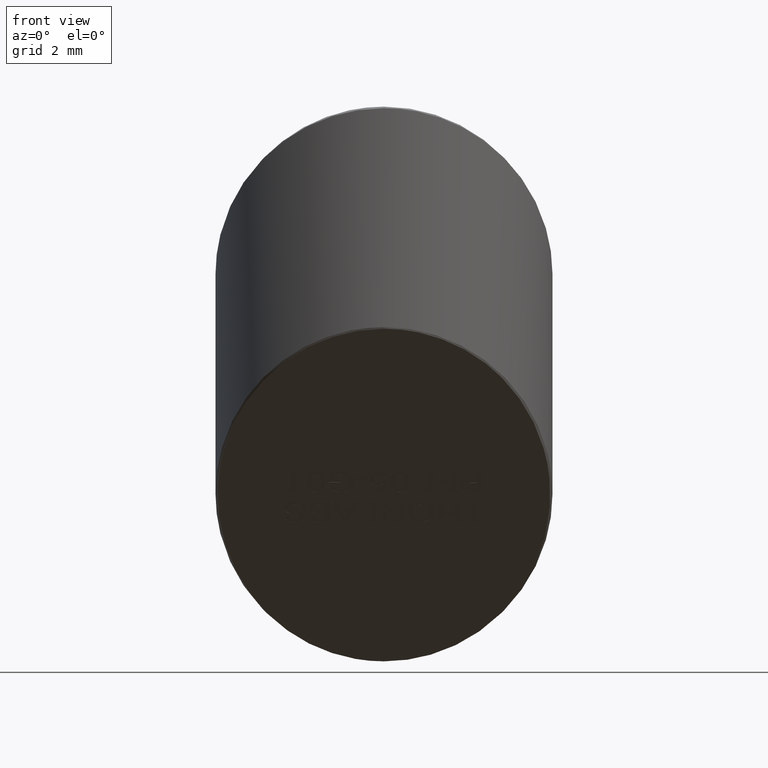
[diagram: clean part render]
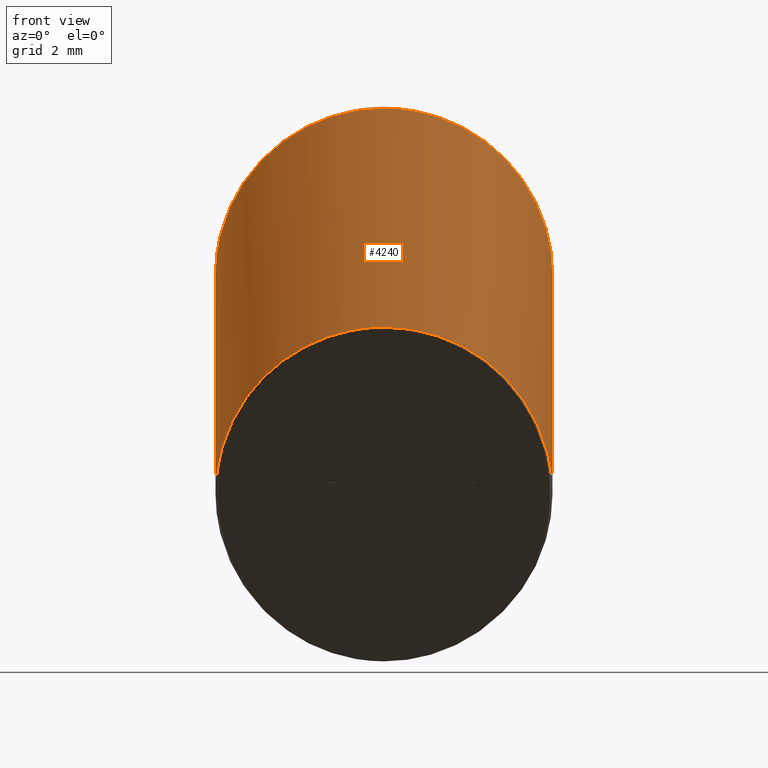
[diagram: same view with one face highlighted and labeled with its STEP entity id]
A machine part, front view. The second image highlights one B-rep face of the part: STEP entity #4240.
In plain terms, the highlighted cylindrical surface (partial cylindrical patch) has radius 6.35 mm, axis along (-0, -0, -1).
Its self-contained STEP definition (entity closure, byte-faithful):
#19 = CARTESIAN_POINT ( 'NONE',  ( 0.2223416782683677900, -0.1143668204986453400, -0.04954749645679985800 ) ) ;
#32 = CARTESIAN_POINT ( 'NONE',  ( -0.2423881008804008900, -0.06122296373910745400, 0.2228365368072238200 ) ) ;
#41 = CARTESIAN_POINT ( 'NONE',  ( -0.2499331683995130400, -0.005780963857176237200, -0.1567105746663771400 ) ) ;
#58 = CARTESIAN_POINT ( 'NONE',  ( 0.2370450236574142000, -0.07947957650088145800, -0.08397766531316383500 ) ) ;
#73 = CARTESIAN_POINT ( 'NONE',  ( -0.2475743223223937600, -0.03479369849507288300, 0.1967535806247425500 ) ) ;
#82 = CARTESIAN_POINT ( 'NONE',  ( -0.2489501389025588800, -0.02289565930073488400, -0.1398201479897643600 ) ) ;
#102 = CARTESIAN_POINT ( 'NONE',  ( 0.2447768522277455100, -0.05083865225638128900, -0.1122432812165127900 ) ) ;
#120 = CARTESIAN_POINT ( 'NONE',  ( -0.2496705844118724500, -0.01283269261419966700, 0.1750803297480777700 ) ) ;
#147 = CARTESIAN_POINT ( 'NONE',  ( 0.2486876141990224100, -0.02558405203329636200, -0.1371669669333660500 ) ) ;
#162 = CARTESIAN_POINT ( 'NONE',  ( 0.2497210451207830800, -0.01180908989499492400, 0.1740701405427806700 ) ) ;
#187 = CARTESIAN_POINT ( 'NONE',  ( 0.2498706253331793600, -0.008073667333966626600, -0.1544479186296308900 ) ) ;
#200 = CARTESIAN_POINT ( 'NONE',  ( 0.2475706317967764100, -0.03477094359615456900, 0.1967311071907965900 ) ) ;
#256 = FACE_OUTER_BOUND ( 'NONE', #12329, .T. ) ;
#350 = CARTESIAN_POINT ( 'NONE',  ( 0.2429825305382694900, -0.05881953228599963400, 0.2204645896993455700 ) ) ;
#393 = CARTESIAN_POINT ( 'NONE',  ( 0.2346823770394754500, -0.08618900332873176400, 0.2474754469720219200 ) ) ;
#443 = CARTESIAN_POINT ( 'NONE',  ( 0.2164516727076655200, -0.1251615217096913000, 0.2859371593515738800 ) ) ;
#464 = CARTESIAN_POINT ( 'NONE',  ( -0.2427464961914780600, -0.05978616990479916600, -0.1034130087881898300 ) ) ;
#494 = CARTESIAN_POINT ( 'NONE',  ( 0.1906109935577851900, -0.1618171440596370100, 0.3221126694723831500 ) ) ;
#512 = CARTESIAN_POINT ( 'NONE',  ( -0.2336009041747087500, -0.08909498340678434500, -0.07448824594513744900 ) ) ;
#539 = CARTESIAN_POINT ( 'NONE',  ( 0.1422443886146468300, -0.2055983147944680500, 0.3653201243496210200 ) ) ;
#541 = B_SPLINE_CURVE_WITH_KNOTS ( 'NONE', 3,
 ( #6288, #12763, #1981, #9567, #3071, #10661, #4160, #11728, #5249, #12812, #6335, #13905, #7442, #942, #8520, #2025, #9616, #3117, #10704, #4213, #11777, #5289, #12862, #6388, #13951, #7484, #999, #8567, #2070, #9666, #3161, #10750, #4257, #11828, #5336, #12903, #6430, #14003, #7532, #1037, #8624, #2117, #9708, #3209, #10801, #4304, #11871, #5389, #12954, #6471, #19, #7583, #1084, #8670, #2173, #9750, #3252, #10846, #4356, #11915, #5433, #13008, #6517, #58, #7630, #1136, #8716, #2216, #9808, #3297, #10890, #4406, #11969, #5475, #13051, #6571, #102, #7670, #1186, #8764, #2259, #9849, #3351, #10932, #4447, #12014, #5526, #13092, #6614, #147, #7713, #1225, #8810, #2302, #9890, #3388, #10980, #4485, #12057, #5572, #13136, #6651, #187, #7762, #1268, #8848, #2352, #9936, #3427, #11016 ),
 .UNSPECIFIED., .F., .F.,
 ( 4, 2, 2, 2, 2, 2, 2, 2, 1, 2, 2, 1, 2, 2, 1, 2, 2, 1, 1, 2, 2, 2, 1, 2, 2, 2, 1, 2, 2, 2, 1, 2, 2, 1, 2, 2, 1, 2, 2, 1, 1, 2, 2, 1, 1, 2, 2, 1, 1, 2, 2, 1, 1, 1, 2, 2, 2, 1, 1, 2, 2, 1, 1, 1, 2, 2, 4 ),
 ( 0.5000000000000000000, 0.5156250000000000000, 0.5312500000000001100, 0.5468750000000001100, 0.5546875000000001100, 0.5625000000000001100, 0.5703125000000002200, 0.5781250000000002200, 0.5859375000000002200, 0.5898437500000002200, 0.5937500000000001100, 0.6015625000000001100, 0.6054687500000000000, 0.6093750000000000000, 0.6171875000000000000, 0.6210937500000000000, 0.6250000000000000000, 0.6328124999999998900, 0.6367187499999998900, 0.6386718749999998900, 0.6406249999999998900, 0.6484374999999998900, 0.6523437499999998900, 0.6542968749999998900, 0.6562499999999998900, 0.6640625000000000000, 0.6679687500000000000, 0.6699218750000000000, 0.6718750000000000000, 0.6796875000000000000, 0.6835937500000000000, 0.6855468750000000000, 0.6875000000000000000, 0.6914062500000000000, 0.6933593750000000000, 0.6953125000000000000, 0.6992187500000000000, 0.7011718750000000000, 0.7031249999999998900, 0.7070312499999998900, 0.7089843749999998900, 0.7099609374999998900, 0.7109374999999998900, 0.7148437499999998900, 0.7167968749999998900, 0.7177734374999998900, 0.7187499999999998900, 0.7226562499999998900, 0.7246093749999998900, 0.7255859374999998900, 0.7265624999999998900, 0.7304687499999998900, 0.7324218749999997800, 0.7333984374999997800, 0.7338867187499997800, 0.7343749999999997800, 0.7382812499999997800, 0.7402343749999997800, 0.7412109374999997800, 0.7416992187499997800, 0.7421874999999997800, 0.7441406249999997800, 0.7451171874999997800, 0.7456054687499997800, 0.7458496093749997800, 0.7460937499999997800, 0.7500000000000000000 ),
 .UNSPECIFIED. ) ;
#554 = CARTESIAN_POINT ( 'NONE',  ( -0.2132936663265296300, -0.1304223722704240000, -0.03370250540536774000 ) ) ;
#579 = CARTESIAN_POINT ( 'NONE',  ( 0.01634743990288260000, -0.2500000000000000600, 0.4091399674393946800 ) ) ;
#601 = CARTESIAN_POINT ( 'NONE',  ( -0.1865628848379676000, -0.1665037659762948500, 0.001906112908788812600 ) ) ;
#657 = CARTESIAN_POINT ( 'NONE',  ( -0.1406096565373472800, -0.2067200746840976700, 0.04159564061083844500 ) ) ;
#704 = CARTESIAN_POINT ( 'NONE',  ( 1.528921213961874800E-017, -0.2500000000000001100, 0.08430848201719966200 ) ) ;
#773 = CARTESIAN_POINT ( 'NONE',  ( 4.590538211830259100E-017, -0.2500000000000001100, 0.4091400578733966900 ) ) ;
#820 = B_SPLINE_CURVE_WITH_KNOTS ( 'NONE', 3,
 ( #4329, #10826, #3233, #5418, #12985, #6491, #41, #7609, #1109, #8696, #2198, #9782, #3277, #10869, #4382, #11944, #5457, #13032, #6547, #82, #7652, #1164, #8743, #2242, #9833, #3328, #10431, #3924, #1508, #9082, #2572, #10172, #3666, #11248, #4774, #12334, #5844, #13414, #6934, #464, #8031, #1546, #9133, #2619, #10214, #3712, #11304, #4821, #12379, #5898, #13465, #6983, #512, #8084, #1590, #9178, #2671, #10265, #3757, #11348, #4873, #12424, #5940, #13517, #7033, #554, #8128, #1642, #9224, #2718, #10318, #3815, #11395, #4918, #12473, #5991, #13561, #7088, #601, #8176, #1691, #9277, #2768, #10367, #3865, #11445, #4963, #12523, #6045, #13605, #7134, #657, #8231, #1740, #9325, #2826, #10415, #3912, #11503, #5016, #12571, #6094, #13668, #7182, #704 ),
 .UNSPECIFIED., .F., .F.,
 ( 4, 2, 1, 1, 2, 2, 1, 1, 2, 2, 2, 1, 1, 2, 2, 1, 1, 2, 2, 1, 1, 2, 2, 1, 1, 2, 2, 1, 2, 2, 1, 2, 2, 1, 2, 2, 2, 1, 2, 2, 2, 1, 2, 2, 2, 1, 2, 2, 1, 2, 2, 1, 2, 2, 1, 2, 2, 2, 2, 2, 2, 2, 4 ),
 ( 0.2500000000000000000, 0.2519531250000002800, 0.2529296875000004400, 0.2534179687500005000, 0.2536621093750005000, 0.2539062500000005000, 0.2558593750000004400, 0.2568359375000004400, 0.2573242187500004400, 0.2578125000000005000, 0.2617187500000005600, 0.2636718750000006100, 0.2646484375000006100, 0.2651367187500006100, 0.2656250000000006100, 0.2695312500000005600, 0.2714843750000005600, 0.2724609375000005600, 0.2734375000000005600, 0.2773437500000005600, 0.2792968750000005600, 0.2802734375000005600, 0.2812500000000005600, 0.2851562500000005000, 0.2871093750000005000, 0.2880859375000005000, 0.2890625000000005000, 0.2929687500000005000, 0.2949218750000004400, 0.2968750000000004400, 0.3007812500000003900, 0.3027343750000003900, 0.3046875000000003300, 0.3085937500000003300, 0.3105468750000002800, 0.3125000000000002800, 0.3203125000000002200, 0.3242187500000002200, 0.3261718750000001700, 0.3281250000000001700, 0.3359375000000001100, 0.3398437500000001100, 0.3417968750000001100, 0.3437500000000000600, 0.3515624999999999400, 0.3554687499999998900, 0.3574218749999998900, 0.3593749999999998300, 0.3671874999999998300, 0.3710937499999998900, 0.3749999999999998900, 0.3828124999999998900, 0.3867187499999998900, 0.3906249999999998900, 0.3984374999999999400, 0.4023437500000000000, 0.4062500000000000000, 0.4140625000000000000, 0.4218750000000000000, 0.4296874999999999400, 0.4374999999999999400, 0.4687500000000000000, 0.5000000000000000000 ),
 .UNSPECIFIED. ) ;
#869 = CARTESIAN_POINT ( 'NONE',  ( -0.08803967110114135900, -0.2340208312245616900, 0.3933701840656725300 ) ) ;
#911 = CARTESIAN_POINT ( 'NONE',  ( -0.1521408736809944100, -0.1983869684394063700, 0.3582032240004466800 ) ) ;
#942 = CARTESIAN_POINT ( 'NONE',  ( 0.1105434153052812500, -0.2242696735345107200, 0.05891521369462984800 ) ) ;
#962 = CARTESIAN_POINT ( 'NONE',  ( -0.1926182380112641300, -0.1593713096163560400, 0.3196988644799950700 ) ) ;
#999 = CARTESIAN_POINT ( 'NONE',  ( 0.1663281574844581700, -0.1867198321264836600, 0.02185731722760086600 ) ) ;
#1014 = CARTESIAN_POINT ( 'NONE',  ( -0.2194855408982676600, -0.1196962263823623700, 0.2805436252875627700 ) ) ;
#1037 = CARTESIAN_POINT ( 'NONE',  ( 0.2037489043681806300, -0.1448926500429885700, -0.01942176661814097600 ) ) ;
#1057 = CARTESIAN_POINT ( 'NONE',  ( -0.2350500362629367200, -0.08516146463507809300, 0.2464613665363705200 ) ) ;
#1084 = CARTESIAN_POINT ( 'NONE',  ( 0.2267822257260649600, -0.1052331002032634400, -0.05856176702099636500 ) ) ;
#1099 = CARTESIAN_POINT ( 'NONE',  ( -0.2436846347492079300, -0.05590309800078854800, 0.2175863429864318400 ) ) ;
#1109 = CARTESIAN_POINT ( 'NONE',  ( -0.2499281884146772900, -0.005993395273826854700, -0.1565009244314747600 ) ) ;
#1136 = CARTESIAN_POINT ( 'NONE',  ( 0.2386221765306954000, -0.07456895317928632900, -0.08882391508324100100 ) ) ;
#1155 = CARTESIAN_POINT ( 'NONE',  ( -0.2484037043020130000, -0.02824113965573029500, 0.1902868470181918700 ) ) ;
#1164 = CARTESIAN_POINT ( 'NONE',  ( -0.2488406073479461100, -0.02405006087784411500, -0.1386808549556924600 ) ) ;
#1167 = VERTEX_POINT ( 'NONE', #6675 ) ;
#1186 = CARTESIAN_POINT ( 'NONE',  ( 0.2451013115065508200, -0.04925022096203112600, -0.1138108892076631800 ) ) ;
#1197 = CARTESIAN_POINT ( 'NONE',  ( 0.2499890269353431100, -0.002555823327574027400, 0.1649380889814212000 ) ) ;
#1201 = CARTESIAN_POINT ( 'NONE',  ( -0.2497434553173376300, -0.01135924250953115900, 0.1736261887288279800 ) ) ;
#1225 = CARTESIAN_POINT ( 'NONE',  ( 0.2487739124405283800, -0.02473038834381027400, -0.1380094400129440200 ) ) ;
#1235 = CARTESIAN_POINT ( 'NONE',  ( 0.2495873755207516900, -0.01453631975585065900, 0.1767616365978711400 ) ) ;
#1268 = CARTESIAN_POINT ( 'NONE',  ( 0.2499102716016337300, -0.006698942352078836000, -0.1558046233397187800 ) ) ;
#1281 = CARTESIAN_POINT ( 'NONE',  ( 0.2473726905157509500, -0.03615298972297328900, 0.1980950588619648500 ) ) ;
#1431 = CARTESIAN_POINT ( 'NONE',  ( 0.2426357254484539600, -0.06023439104908029400, 0.2218609174965818200 ) ) ;
#1486 = CARTESIAN_POINT ( 'NONE',  ( 0.2324843076334832700, -0.09193514284016478200, 0.2531462912076952200 ) ) ;
#1508 = CARTESIAN_POINT ( 'NONE',  ( -0.2473726905152881500, -0.03615298972609339000, -0.1267365169911787700 ) ) ;
#1529 = CARTESIAN_POINT ( 'NONE',  ( 0.2116931192567109700, -0.1330155348220089800, 0.2936883000576007700 ) ) ;
#1546 = CARTESIAN_POINT ( 'NONE',  ( -0.2419961646997902400, -0.06278766068106160500, -0.1004508410906077800 ) ) ;
#1571 = CARTESIAN_POINT ( 'NONE',  ( 0.1824029818000402800, -0.1709773692447706400, 0.3311527482962501300 ) ) ;
#1573 = EDGE_CURVE ( 'NONE', #3554, #2794, #820, .T. ) ;
#1590 = CARTESIAN_POINT ( 'NONE',  ( -0.2317325270964201200, -0.09381396308844766600, -0.06983107077515024500 ) ) ;
#1623 = CARTESIAN_POINT ( 'NONE',  ( 0.1354583616856870600, -0.2101620598616006600, 0.3698241300838298600 ) ) ;
#1642 = CARTESIAN_POINT ( 'NONE',  ( -0.2100629158657672200, -0.1355528494002033500, -0.02863913510619323800 ) ) ;
#1691 = CARTESIAN_POINT ( 'NONE',  ( -0.1796066712195129900, -0.1739124843616965100, 0.009217887729673739100 ) ) ;
#1740 = CARTESIAN_POINT ( 'NONE',  ( -0.1319837973422171300, -0.2123605668992256400, 0.04716216268148520200 ) ) ;
#1819 = EDGE_CURVE ( 'NONE', #7492, #3554, #5039, .T. ) ;
#1907 = CARTESIAN_POINT ( 'NONE',  ( -0.008173719951441293200, -0.2500000000000001100, 0.4091401030903976100 ) ) ;
#1950 = CARTESIAN_POINT ( 'NONE',  ( -0.09942041111909460900, -0.2294167674108607000, 0.3888265464812658600 ) ) ;
#1972 = VECTOR ( 'NONE', #10336, 39.37007874015748100 ) ;
#1981 = CARTESIAN_POINT ( 'NONE',  ( 0.01638314262150695000, -0.2495960443858851700, 0.08390977447512380800 ) ) ;
#1999 = CARTESIAN_POINT ( 'NONE',  ( -0.1570409078414649600, -0.1945307493220266300, 0.3543976077460084300 ) ) ;
#2025 = CARTESIAN_POINT ( 'NONE',  ( 0.1214209869870680200, -0.2185711477254549400, 0.05329145924585363500 ) ) ;
#2044 = CARTESIAN_POINT ( 'NONE',  ( -0.1982822176333595400, -0.1523184010716661100, 0.3127382378920163800 ) ) ;
#2070 = CARTESIAN_POINT ( 'NONE',  ( 0.1738280830776176800, -0.1796887408164887800, 0.01491846240501350700 ) ) ;
#2086 = CARTESIAN_POINT ( 'NONE',  ( -0.2223416782721108200, -0.1143668204916426500, 0.2752840793921571000 ) ) ;
#2117 = CARTESIAN_POINT ( 'NONE',  ( 0.2067020117914584700, -0.1406248883579022400, -0.02363351343316403800 ) ) ;
#2140 = CARTESIAN_POINT ( 'NONE',  ( -0.2370450236474318500, -0.07947957653070739100, 0.2408539105725964500 ) ) ;
#2153 = VECTOR ( 'NONE', #4497, 39.37007874015748100 ) ;
#2173 = CARTESIAN_POINT ( 'NONE',  ( 0.2293279632553713600, -0.09954790935596688500, -0.06417231798603795200 ) ) ;
#2190 = CARTESIAN_POINT ( 'NONE',  ( -0.2447768522255716600, -0.05083865226687214100, 0.2125882946499852400 ) ) ;
#2198 = CARTESIAN_POINT ( 'NONE',  ( -0.2498455345732325300, -0.008888543313694333100, -0.1536437284121428000 ) ) ;
#2216 = CARTESIAN_POINT ( 'NONE',  ( 0.2398109979406079000, -0.07067263526436608200, -0.09266916737933086900 ) ) ;
#2235 = CARTESIAN_POINT ( 'NONE',  ( -0.2486876141998665100, -0.02558405202507180500, 0.1876646089147591100 ) ) ;
#2242 = CARTESIAN_POINT ( 'NONE',  ( -0.2485824939305285300, -0.02667389309118121600, -0.1360913995479329500 ) ) ;
#2259 = CARTESIAN_POINT ( 'NONE',  ( 0.2461271723699526300, -0.04391791204506689800, -0.1190733853917348300 ) ) ;
#2269 = CARTESIAN_POINT ( 'NONE',  ( 0.2499546688893192500, -0.004792714297285689100, 0.1671456830183353200 ) ) ;
#2276 = CARTESIAN_POINT ( 'NONE',  ( -0.2498706253352426000, -0.008073667268559719300, 0.1703836571620619400 ) ) ;
#2302 = CARTESIAN_POINT ( 'NONE',  ( 0.2491440030884489500, -0.02077135067156036700, -0.1419166855230000200 ) ) ;
#2317 = CARTESIAN_POINT ( 'NONE',  ( 0.2492207342004544900, -0.01975022697340338800, 0.1819071440600614200 ) ) ;
#2352 = CARTESIAN_POINT ( 'NONE',  ( 0.2499226135232438800, -0.006220491168796451500, -0.1562768042192347900 ) ) ;
#2360 = CARTESIAN_POINT ( 'NONE',  ( 0.2464782918051241800, -0.04190132152559805600, 0.2037680195739631800 ) ) ;
#2514 = CARTESIAN_POINT ( 'NONE',  ( 0.2412010002576348300, -0.06579792314958465800, 0.2273515228858185900 ) ) ;
#2516 = B_SPLINE_CURVE_WITH_KNOTS ( 'NONE', 3,
 ( #773, #1907, #4083, #11664, #5176, #12736, #6260, #13833, #7359, #869, #8447, #1950, #9542, #3046, #10630, #4128, #11702, #5221, #12785, #6305, #13879, #7412, #911, #8488, #1999, #9586, #3087, #10675, #4179, #11745, #5265, #12832, #6352, #13923, #7460, #962, #8536, #2044, #9636, #3133, #10721, #4228, #11799, #5306, #12875, #6406, #13969, #7501, #1014, #8589, #2086, #9682, #3181, #10765, #4275, #11845, #5357, #12921, #6447, #14024, #7548, #1057, #8642, #2140, #9720, #3223, #10819, #4320, #11887, #5408, #12975, #6483, #32, #7601, #1099, #8688, #2190, #9773, #3268, #10860, #4373, #11934, #5451, #13025, #6537, #73, #7642, #1155, #8734, #2235, #9826, #3319, #10904, #4423, #11989, #5493, #13068, #6590, #120, #7686, #1201, #8784, #2276, #9868, #3366, #10951, #4462, #12029, #5545, #13109 ),
 .UNSPECIFIED., .F., .F.,
 ( 4, 2, 2, 2, 2, 2, 2, 2, 1, 2, 2, 1, 2, 2, 1, 2, 2, 1, 1, 2, 2, 2, 1, 2, 2, 2, 1, 2, 2, 2, 1, 2, 2, 1, 2, 2, 1, 2, 2, 1, 1, 2, 2, 1, 1, 2, 2, 1, 1, 2, 2, 1, 1, 1, 2, 2, 2, 1, 1, 2, 2, 1, 1, 1, 2, 2, 4 ),
 ( 0.5000000000000000000, 0.5156249999999997800, 0.5312499999999995600, 0.5468749999999993300, 0.5546874999999993300, 0.5624999999999992200, 0.5703124999999991100, 0.5781249999999990000, 0.5859374999999988900, 0.5898437499999988900, 0.5937499999999988900, 0.6015624999999990000, 0.6054687499999991100, 0.6093749999999991100, 0.6171874999999993300, 0.6210937499999993300, 0.6249999999999993300, 0.6328124999999993300, 0.6367187499999993300, 0.6386718749999993300, 0.6406249999999993300, 0.6484374999999994400, 0.6523437499999995600, 0.6542968749999995600, 0.6562499999999995600, 0.6640624999999997800, 0.6679687500000000000, 0.6699218750000000000, 0.6718750000000000000, 0.6796875000000002200, 0.6835937500000003300, 0.6855468750000004400, 0.6875000000000004400, 0.6914062500000005600, 0.6933593750000005600, 0.6953125000000005600, 0.6992187500000005600, 0.7011718750000004400, 0.7031250000000004400, 0.7070312500000004400, 0.7089843750000004400, 0.7099609375000004400, 0.7109375000000003300, 0.7148437500000003300, 0.7167968750000003300, 0.7177734375000003300, 0.7187500000000003300, 0.7226562500000002200, 0.7246093750000001100, 0.7255859375000001100, 0.7265625000000000000, 0.7304687499999998900, 0.7324218749999997800, 0.7333984374999997800, 0.7338867187499997800, 0.7343749999999996700, 0.7382812499999995600, 0.7402343749999994400, 0.7412109374999993300, 0.7416992187499993300, 0.7421874999999993300, 0.7441406249999993300, 0.7451171874999994400, 0.7456054687499994400, 0.7458496093749994400, 0.7460937499999995600, 0.7500000000000000000 ),
 .UNSPECIFIED. ) ;
#2554 = CARTESIAN_POINT ( 'NONE',  ( 0.2313747325468073800, -0.09469346513323845200, 0.2558684899027878800 ) ) ;
#2572 = CARTESIAN_POINT ( 'NONE',  ( -0.2464782918088388200, -0.04190132150383293900, -0.1210635563036034800 ) ) ;
#2599 = CARTESIAN_POINT ( 'NONE',  ( 0.2089698128100943000, -0.1372319967669960700, 0.2978496258973300500 ) ) ;
#2619 = CARTESIAN_POINT ( 'NONE',  ( -0.2403695769277189600, -0.06872759013237209100, -0.09458875376346302700 ) ) ;
#2652 = CARTESIAN_POINT ( 'NONE',  ( 0.1782442327937139900, -0.1753091577995599700, 0.3354278757010928400 ) ) ;
#2671 = CARTESIAN_POINT ( 'NONE',  ( -0.2293504854467774400, -0.09958042993572538400, -0.06414014346287021100 ) ) ;
#2700 = CARTESIAN_POINT ( 'NONE',  ( 0.1249655209540167200, -0.2165648902923164900, 0.3761429542142292700 ) ) ;
#2718 = CARTESIAN_POINT ( 'NONE',  ( -0.2084480311862206600, -0.1380235868786347200, -0.02620071630867572600 ) ) ;
#2768 = CARTESIAN_POINT ( 'NONE',  ( -0.1738416203044785000, -0.1797117702887955600, 0.01494124960900842400 ) ) ;
#2794 = VERTEX_POINT ( 'NONE', #6583 ) ;
#2826 = CARTESIAN_POINT ( 'NONE',  ( -0.1214842966165476200, -0.2185373080234852000, 0.05325802307418900400 ) ) ;
#2877 = CARTESIAN_POINT ( 'NONE',  ( 0.2500000000000001100, 3.637868835736454700E-016, 0.1624157879280981000 ) ) ;
#3046 = CARTESIAN_POINT ( 'NONE',  ( -0.1105434153010765300, -0.2242696735365832300, 0.3837467895527792400 ) ) ;
#3071 = CARTESIAN_POINT ( 'NONE',  ( 0.04078235764010849200, -0.2467856742465617500, 0.08113622911575345300 ) ) ;
#3087 = CARTESIAN_POINT ( 'NONE',  ( -0.1663281574807737900, -0.1867198321297731900, 0.3466888930868888300 ) ) ;
#3117 = CARTESIAN_POINT ( 'NONE',  ( 0.1319740630401237700, -0.2123371648622302500, 0.04713906382963265600 ) ) ;
#3133 = CARTESIAN_POINT ( 'NONE',  ( -0.2037489043681814100, -0.1448926500429874300, 0.3054098092380548300 ) ) ;
#3161 = CARTESIAN_POINT ( 'NONE',  ( 0.1796166402051064000, -0.1739367503881674400, 0.009241898807147068100 ) ) ;
#3174 = ORIENTED_EDGE ( 'NONE', *, *, #1819, .T. ) ;
#3181 = CARTESIAN_POINT ( 'NONE',  ( -0.2267822257310785900, -0.1052331001924591400, 0.2662698088243408100 ) ) ;
#3209 = CARTESIAN_POINT ( 'NONE',  ( 0.2100777179110356300, -0.1355845883349371100, -0.02860774140953444400 ) ) ;
#3223 = CARTESIAN_POINT ( 'NONE',  ( -0.2386221765260228300, -0.07456895319430119400, 0.2360076607877375200 ) ) ;
#3233 = CARTESIAN_POINT ( 'NONE',  ( -0.2499890269384951200, -0.002555823019277273800, -0.1598934871789542700 ) ) ;
#3252 = CARTESIAN_POINT ( 'NONE',  ( 0.2305869987488678700, -0.09659522275176395100, -0.06708624679170552300 ) ) ;
#3268 = CARTESIAN_POINT ( 'NONE',  ( -0.2451013115069912700, -0.04925022095981695200, 0.2110206866463297000 ) ) ;
#3277 = CARTESIAN_POINT ( 'NONE',  ( -0.2497427576126865500, -0.01134063491959526500, -0.1512237542790204300 ) ) ;
#3281 = EDGE_CURVE ( 'NONE', #2794, #12421, #541, .T. ) ;
#3297 = CARTESIAN_POINT ( 'NONE',  ( 0.2415962538599231200, -0.06428949796402729000, -0.09896870062944913800 ) ) ;
#3319 = CARTESIAN_POINT ( 'NONE',  ( -0.2487739124402235400, -0.02473038834690521500, 0.1868221358463179600 ) ) ;
#3328 = CARTESIAN_POINT ( 'NONE',  ( -0.2477738160796257000, -0.03331424560108682500, -0.1295380993040685700 ) ) ;
#3351 = CARTESIAN_POINT ( 'NONE',  ( 0.2469735746614617500, -0.03878574309169271300, -0.1241382718835308100 ) ) ;
#3362 = CARTESIAN_POINT ( 'NONE',  ( 0.2499331683973140500, -0.005780963951891953400, 0.1681210012832913000 ) ) ;
#3366 = CARTESIAN_POINT ( 'NONE',  ( -0.2499102716022466300, -0.006698942329105378600, 0.1690269524938248800 ) ) ;
#3388 = CARTESIAN_POINT ( 'NONE',  ( 0.2494826343897109700, -0.01613905698066895100, -0.1464882658110312800 ) ) ;
#3399 = ORIENTED_EDGE ( 'NONE', *, *, #10885, .F. ) ;
#3402 = CARTESIAN_POINT ( 'NONE',  ( 0.2489501389003591400, -0.02289565932443960200, 0.1850114278898139000 ) ) ;
#3427 = CARTESIAN_POINT ( 'NONE',  ( 0.2500000000000000000, -0.002726018069638891600, -0.1597254886557566100 ) ) ;
#3439 = CARTESIAN_POINT ( 'NONE',  ( 0.2455723813343022300, -0.04684494450202578800, 0.2086469143265429500 ) ) ;
#3554 = VERTEX_POINT ( 'NONE', #7556 ) ;
#3589 = ORIENTED_EDGE ( 'NONE', *, *, #9649, .T. ) ;
#3590 = CARTESIAN_POINT ( 'NONE',  ( 0.2398078055452500800, -0.07066280179404552100, 0.2321526906990780700 ) ) ;
#3642 = CARTESIAN_POINT ( 'NONE',  ( 0.2276588594636942700, -0.1033836391423795800, 0.2644445864794916500 ) ) ;
#3666 = CARTESIAN_POINT ( 'NONE',  ( -0.2455723813363014700, -0.04684494449157049900, -0.1161846615399572300 ) ) ;
#3696 = CARTESIAN_POINT ( 'NONE',  ( 0.2055448906313354600, -0.1423684437629037000, 0.3029188021786083900 ) ) ;
#3712 = CARTESIAN_POINT ( 'NONE',  ( -0.2395391694658216000, -0.07156873365434557300, -0.09178481536317052700 ) ) ;
#3740 = CARTESIAN_POINT ( 'NONE',  ( 0.1693613146958979600, -0.1839727511159660000, 0.3439778047754594200 ) ) ;
#3757 = CARTESIAN_POINT ( 'NONE',  ( -0.2250307201152215200, -0.1089282253967393900, -0.05491505803962412600 ) ) ;
#3790 = CARTESIAN_POINT ( 'NONE',  ( 0.1142140717947074400, -0.2224233241516247500, 0.3819247371178442500 ) ) ;
#3815 = CARTESIAN_POINT ( 'NONE',  ( -0.2031601627797712300, -0.1457486925976652400, -0.01857696664989758100 ) ) ;
#3831 = CARTESIAN_POINT ( 'NONE',  ( 0.2500000000000001100, 3.061616997868384300E-017, 0.9842519685039370400 ) ) ;
#3865 = CARTESIAN_POINT ( 'NONE',  ( -0.1647796033795528300, -0.1880207548355687400, 0.02314125253923408900 ) ) ;
#3894 = ORIENTED_EDGE ( 'NONE', *, *, #8004, .T. ) ;
#3912 = CARTESIAN_POINT ( 'NONE',  ( -0.1105446711960123300, -0.2242690544965966200, 0.05891462273081522800 ) ) ;
#3924 = CARTESIAN_POINT ( 'NONE',  ( -0.2474335567349919800, -0.03573333525290288400, -0.1271506767288723100 ) ) ;
#4083 = CARTESIAN_POINT ( 'NONE',  ( -0.01638314262344815400, -0.2495960443856939400, 0.4087413503308707200 ) ) ;
#4128 = CARTESIAN_POINT ( 'NONE',  ( -0.1214209869854816500, -0.2185711477263028700, 0.3781230351030369100 ) ) ;
#4160 = CARTESIAN_POINT ( 'NONE',  ( 0.06478895529337437600, -0.2415957927472150700, 0.07601435137050342700 ) ) ;
#4179 = CARTESIAN_POINT ( 'NONE',  ( -0.1738280830758470700, -0.1796887408182095700, 0.3397500382627561800 ) ) ;
#4213 = CARTESIAN_POINT ( 'NONE',  ( 0.1372127816177832500, -0.2089897939410340900, 0.04383562012389893200 ) ) ;
#4228 = CARTESIAN_POINT ( 'NONE',  ( -0.2067020117914587500, -0.1406248883579019900, 0.3011980624230327600 ) ) ;
#4240 = ADVANCED_FACE ( 'NONE', ( #256 ), #11083, .T. ) ;
#4257 = CARTESIAN_POINT ( 'NONE',  ( 0.1885799220906569700, -0.1641495577649869900, -0.0004171657636249171500 ) ) ;
#4275 = CARTESIAN_POINT ( 'NONE',  ( -0.2293279632580332800, -0.09954790934981909400, 0.2606592578640504800 ) ) ;
#4304 = CARTESIAN_POINT ( 'NONE',  ( 0.2153982946551508400, -0.1269163423019698800, -0.03716259635517282800 ) ) ;
#4320 = CARTESIAN_POINT ( 'NONE',  ( -0.2398109979376535100, -0.07067263527410468100, 0.2321624084865509500 ) ) ;
#4329 = CARTESIAN_POINT ( 'NONE',  ( -0.2500000000000001100, 1.990193948509316800E-016, -0.1624157879280985200 ) ) ;
#4356 = CARTESIAN_POINT ( 'NONE',  ( 0.2328637189492396000, -0.09100456919349141100, -0.07260367571475195800 ) ) ;
#4373 = CARTESIAN_POINT ( 'NONE',  ( -0.2461271723671842300, -0.04391791206062802700, 0.2057581904798897500 ) ) ;
#4382 = CARTESIAN_POINT ( 'NONE',  ( -0.2497128001174202800, -0.01198324343898605000, -0.1505895629043914900 ) ) ;
#4406 = CARTESIAN_POINT ( 'NONE',  ( 0.2422507273393695600, -0.06176454042418880900, -0.1014605608614967700 ) ) ;
#4423 = CARTESIAN_POINT ( 'NONE',  ( -0.2491440030915494100, -0.02077135063437115400, 0.1829148902964128100 ) ) ;
#4447 = CARTESIAN_POINT ( 'NONE',  ( 0.2472240787840541100, -0.03715484863909424000, -0.1257477855472991500 ) ) ;
#4458 = CARTESIAN_POINT ( 'NONE',  ( 0.2499281884148301100, -0.005993395267601184600, 0.1683306514185777800 ) ) ;
#4462 = CARTESIAN_POINT ( 'NONE',  ( -0.2499226135228872200, -0.006220491183327615100, 0.1685547716513058300 ) ) ;
#4485 = CARTESIAN_POINT ( 'NONE',  ( 0.2496411516260940200, -0.01339306294674640900, -0.1491982245067224900 ) ) ;
#4497 = DIRECTION ( 'NONE',  ( -0.0000000000000000000, -0.0000000000000000000, -1.000000000000000000 ) ) ;
#4501 = CARTESIAN_POINT ( 'NONE',  ( 0.2488406073472184700, -0.02405006088533946000, 0.1861507209079003900 ) ) ;
#4519 = LINE ( 'NONE', #3831, #1972 ) ;
#4551 = CARTESIAN_POINT ( 'NONE',  ( 0.2452996667686019300, -0.04825302171965079700, 0.2100365535821330200 ) ) ;
#4661 = CARTESIAN_POINT ( 'NONE',  ( -0.2500000000000001100, -2.314627312100812000E-017, 0.1624157879280985200 ) ) ;
#4665 = AXIS2_PLACEMENT_3D ( 'NONE', #11677, #6366, #10591 ) ;
#4712 = CARTESIAN_POINT ( 'NONE',  ( 0.2386269128689168800, -0.07457604062753009400, 0.2360146680093959100 ) ) ;
#4756 = CARTESIAN_POINT ( 'NONE',  ( 0.2236939633032734000, -0.1116604835045736800, 0.2726130335016861400 ) ) ;
#4774 = CARTESIAN_POINT ( 'NONE',  ( -0.2452996667686017400, -0.04825302171965174800, -0.1147950222740628400 ) ) ;
#4803 = CARTESIAN_POINT ( 'NONE',  ( 0.1995023428238721900, -0.1506751422479639700, 0.3111164991474378900 ) ) ;
#4821 = CARTESIAN_POINT ( 'NONE',  ( -0.2376876969461361500, -0.07753614470878357500, -0.08589562808316167400 ) ) ;
#4852 = CARTESIAN_POINT ( 'NONE',  ( 0.1617042295198728400, -0.1906721376977799900, 0.3505895206603298300 ) ) ;
#4873 = CARTESIAN_POINT ( 'NONE',  ( -0.2223263702901064300, -0.1143327489951021100, -0.04958120157708449700 ) ) ;
#4900 = CARTESIAN_POINT ( 'NONE',  ( 0.1031482715026406000, -0.2277655970963337600, 0.3871969062818709800 ) ) ;
#4918 = CARTESIAN_POINT ( 'NONE',  ( -0.1976532439765617800, -0.1531024004448980300, -0.01131958689637898800 ) ) ;
#4963 = CARTESIAN_POINT ( 'NONE',  ( -0.1601983743830984500, -0.1919394834985570000, 0.02700871897987780800 ) ) ;
#5016 = CARTESIAN_POINT ( 'NONE',  ( -0.09947179219757217000, -0.2293954846713059900, 0.06397392498233382700 ) ) ;
#5039 = LINE ( 'NONE', #6624, #2153 ) ;
#5176 = CARTESIAN_POINT ( 'NONE',  ( -0.04078235764337249200, -0.2467856742459126100, 0.4059678049713840200 ) ) ;
#5221 = CARTESIAN_POINT ( 'NONE',  ( -0.1319740630380249500, -0.2123371648635391500, 0.3719706396871856300 ) ) ;
#5249 = CARTESIAN_POINT ( 'NONE',  ( 0.08033627799389199400, -0.2367758762473914400, 0.07125757572053387200 ) ) ;
#5265 = CARTESIAN_POINT ( 'NONE',  ( -0.1796166402029760700, -0.1739367503902978000, 0.3340734746656423000 ) ) ;
#5289 = CARTESIAN_POINT ( 'NONE',  ( 0.1472410859868301700, -0.2021123534736189700, 0.03704817107273535000 ) ) ;
#5306 = CARTESIAN_POINT ( 'NONE',  ( -0.2100777179149405100, -0.1355845883290929500, 0.2962238344408949000 ) ) ;
#5336 = CARTESIAN_POINT ( 'NONE',  ( 0.1919279527743495100, -0.1602021705937943800, -0.004312749638067033500 ) ) ;
#5357 = CARTESIAN_POINT ( 'NONE',  ( -0.2305869987511048300, -0.09659522274636325700, 0.2577453290591613100 ) ) ;
#5389 = CARTESIAN_POINT ( 'NONE',  ( 0.2184785088447720200, -0.1215246083990829000, -0.04248356586796983600 ) ) ;
#5408 = CARTESIAN_POINT ( 'NONE',  ( -0.2415962538565072400, -0.06428949797694046000, 0.2258628752394594200 ) ) ;
#5410 = ORIENTED_EDGE ( 'NONE', *, *, #3281, .T. ) ;
#5418 = CARTESIAN_POINT ( 'NONE',  ( -0.2499670703215626800, -0.004089646695664754700, -0.1583797581778067800 ) ) ;
#5433 = CARTESIAN_POINT ( 'NONE',  ( 0.2346777603770915100, -0.08618246548915325900, -0.07736259121744980300 ) ) ;
#5447 = CARTESIAN_POINT ( 'NONE',  ( 0.2500000000000001100, 3.637868835736454700E-016, 0.1624157879280981000 ) ) ;
#5451 = CARTESIAN_POINT ( 'NONE',  ( -0.2469735746602831100, -0.03878574309922080300, 0.2006933039801043200 ) ) ;
#5457 = CARTESIAN_POINT ( 'NONE',  ( -0.2494505913749108500, -0.01669088812392164500, -0.1459436878886255800 ) ) ;
#5475 = CARTESIAN_POINT ( 'NONE',  ( 0.2429866629746657800, -0.05883336991031959400, -0.1043533183437241900 ) ) ;
#5487 = CARTESIAN_POINT ( 'NONE',  ( 0.2500000000000002800, -0.001363009214122585900, 0.1637609377411696200 ) ) ;
#5493 = CARTESIAN_POINT ( 'NONE',  ( -0.2494826343917690100, -0.01613905694808076600, 0.1783433100129796800 ) ) ;
#5526 = CARTESIAN_POINT ( 'NONE',  ( 0.2479771299694862000, -0.03185479263814922100, -0.1309784651461216900 ) ) ;
#5539 = CARTESIAN_POINT ( 'NONE',  ( 0.2498455345701002500, -0.008888543400825520800, 0.1711878475300709100 ) ) ;
#5545 = CARTESIAN_POINT ( 'NONE',  ( -0.2500000000000000600, -0.002726018042817778600, 0.1651060871739861200 ) ) ;
#5572 = CARTESIAN_POINT ( 'NONE',  ( 0.2496877162353937600, -0.01249383758748511700, -0.1500856591365544200 ) ) ;
#5581 = CARTESIAN_POINT ( 'NONE',  ( 0.2485824939289876500, -0.02667389310682554900, 0.1887401763237031000 ) ) ;
#5733 = CARTESIAN_POINT ( 'NONE',  ( 0.2447829334296308400, -0.05085081564155796000, 0.2126003116760737900 ) ) ;
#5775 = CARTESIAN_POINT ( 'NONE',  ( 0.2367124537610655600, -0.08042533654105142600, 0.2417872858828980000 ) ) ;
#5822 = CARTESIAN_POINT ( 'NONE',  ( 0.2214081359242017500, -0.1161009464462963700, 0.2769954514618469000 ) ) ;
#5844 = CARTESIAN_POINT ( 'NONE',  ( -0.2441340090151200000, -0.05390609934488027600, -0.1092160623550396300 ) ) ;
#5879 = CARTESIAN_POINT ( 'NONE',  ( 0.1957761587845258700, -0.1554757451161933900, 0.3158542960503354900 ) ) ;
#5898 = CARTESIAN_POINT ( 'NONE',  ( -0.2360547626986842800, -0.08233571236463184400, -0.08115894047683884500 ) ) ;
#5923 = CARTESIAN_POINT ( 'NONE',  ( 0.1553982143528321900, -0.1958788730279799100, 0.3557280934131630800 ) ) ;
#5940 = CARTESIAN_POINT ( 'NONE',  ( -0.2209754992522448000, -0.1169227616647591200, -0.04702505862050229700 ) ) ;
#5969 = CARTESIAN_POINT ( 'NONE',  ( 0.08046712165733636800, -0.2372674769575040000, 0.3965744521707012500 ) ) ;
#5991 = CARTESIAN_POINT ( 'NONE',  ( -0.1945188000100157600, -0.1570460063501273000, -0.007427560133349286200 ) ) ;
#6045 = CARTESIAN_POINT ( 'NONE',  ( -0.1505287378375699800, -0.1996755837945506900, 0.03464332850488880500 ) ) ;
#6094 = CARTESIAN_POINT ( 'NONE',  ( -0.06485776823325765900, -0.2419967773298412600, 0.07641003595227391400 ) ) ;
#6260 = CARTESIAN_POINT ( 'NONE',  ( -0.06478895529998073000, -0.2415957927452111200, 0.4008459272243396500 ) ) ;
#6288 = CARTESIAN_POINT ( 'NONE',  ( 1.528921213961874800E-017, -0.2500000000000001100, 0.08430848201719966200 ) ) ;
#6305 = CARTESIAN_POINT ( 'NONE',  ( -0.1372127816177833000, -0.2089897939410341200, 0.3686671959800959000 ) ) ;
#6335 = CARTESIAN_POINT ( 'NONE',  ( 0.09192130506056393800, -0.2325229988459784100, 0.06706045987253682300 ) ) ;
#6352 = CARTESIAN_POINT ( 'NONE',  ( -0.1885799220880695600, -0.1641495577679772100, 0.3244144100955886300 ) ) ;
#6366 = DIRECTION ( 'NONE',  ( -0.0000000000000000000, -0.0000000000000000000, -1.000000000000000000 ) ) ;
#6388 = CARTESIAN_POINT ( 'NONE',  ( 0.1553860207116686000, -0.1958556081872235000, 0.03087349979144094300 ) ) ;
#6406 = CARTESIAN_POINT ( 'NONE',  ( -0.2153982946605034200, -0.1269163422928858400, 0.2876689794923724700 ) ) ;
#6430 = CARTESIAN_POINT ( 'NONE',  ( 0.1957901146583650700, -0.1555063667391333700, -0.008946994668306333700 ) ) ;
#6447 = CARTESIAN_POINT ( 'NONE',  ( -0.2328637189418017700, -0.09100456921255463400, 0.2522279001601005500 ) ) ;
#6471 = CARTESIAN_POINT ( 'NONE',  ( 0.2200149755417693000, -0.1187197751334627000, -0.04525159111093542100 ) ) ;
#6483 = CARTESIAN_POINT ( 'NONE',  ( -0.2422507273381947500, -0.06176454042881225600, 0.2233710149992397000 ) ) ;
#6491 = CARTESIAN_POINT ( 'NONE',  ( -0.2499395918187172500, -0.005501244316215901300, -0.1569866328481382700 ) ) ;
#6517 = CARTESIAN_POINT ( 'NONE',  ( 0.2360579763674504900, -0.08234446075707746400, -0.08115029598019127300 ) ) ;
#6537 = CARTESIAN_POINT ( 'NONE',  ( -0.2472240787833960300, -0.03715484864353034400, 0.1990837903132753900 ) ) ;
#6547 = CARTESIAN_POINT ( 'NONE',  ( -0.2490996135085162800, -0.02123677750318471100, -0.1414573340820224300 ) ) ;
#6559 = CARTESIAN_POINT ( 'NONE',  ( 0.2500000000000001100, 1.652727872720702100E-019, -0.1624157879280981000 ) ) ;
#6571 = CARTESIAN_POINT ( 'NONE',  ( 0.2444561654528893100, -0.05237447346747237800, -0.1107275971290119600 ) ) ;
#6583 = CARTESIAN_POINT ( 'NONE',  ( 1.528921213961874800E-017, -0.2500000000000001100, 0.08430848201719966200 ) ) ;
#6590 = CARTESIAN_POINT ( 'NONE',  ( -0.2496411516267053000, -0.01339306293529578300, 0.1756333513381707100 ) ) ;
#6614 = CARTESIAN_POINT ( 'NONE',  ( 0.2486044512741545600, -0.02638810615130069600, -0.1363734561698118600 ) ) ;
#6624 = CARTESIAN_POINT ( 'NONE',  ( -0.2500000000000001100, 0.0000000000000000000, 0.9842519685039370400 ) ) ;
#6629 = CARTESIAN_POINT ( 'NONE',  ( 0.2497427576107708300, -0.01134063496158727000, 0.1736078216186484100 ) ) ;
#6651 = CARTESIAN_POINT ( 'NONE',  ( 0.2498071386838134600, -0.009912050028475739500, -0.1526336322430514600 ) ) ;
#6662 = CARTESIAN_POINT ( 'NONE',  ( 0.2477738160768474000, -0.03331424562153152700, 0.1952934765723922100 ) ) ;
#6675 = CARTESIAN_POINT ( 'NONE',  ( 4.590538211830259100E-017, -0.2500000000000001100, 0.4091400578733966900 ) ) ;
#6817 = CARTESIAN_POINT ( 'NONE',  ( 0.2433338913696831100, -0.05736181215878954200, 0.2190259601603960200 ) ) ;
#6873 = CARTESIAN_POINT ( 'NONE',  ( 0.2357378359238970200, -0.08323919335771168300, 0.2445642829968098500 ) ) ;
#6920 = CARTESIAN_POINT ( 'NONE',  ( 0.2184995834265655600, -0.1215548743732719500, 0.2823779494376841300 ) ) ;
#6934 = CARTESIAN_POINT ( 'NONE',  ( -0.2429825305382701000, -0.05881953228599708800, -0.1043669861568538900 ) ) ;
#6967 = CARTESIAN_POINT ( 'NONE',  ( 0.1939130182864093300, -0.1577936152862298200, 0.3181418424088717800 ) ) ;
#6983 = CARTESIAN_POINT ( 'NONE',  ( -0.2346823770342211200, -0.08618900334341642000, -0.07735612886978483800 ) ) ;
#7014 = CARTESIAN_POINT ( 'NONE',  ( 0.1455692265256081900, -0.2032578004097653800, 0.3630102338813904200 ) ) ;
#7033 = CARTESIAN_POINT ( 'NONE',  ( -0.2164516727075015400, -0.1251615217099751600, -0.03889441650464519500 ) ) ;
#7066 = CARTESIAN_POINT ( 'NONE',  ( 0.03268739277098022700, -0.2483958628725353200, 0.4075570286097900400 ) ) ;
#7088 = CARTESIAN_POINT ( 'NONE',  ( -0.1906109935596964600, -0.1618171440573081500, -0.002718906386112210900 ) ) ;
#7134 = CARTESIAN_POINT ( 'NONE',  ( -0.1422443886181015700, -0.2055983147920897600, 0.04048854849079826900 ) ) ;
#7182 = CARTESIAN_POINT ( 'NONE',  ( -0.01634743991242972400, -0.2500000000000000600, 0.08430839158359634800 ) ) ;
#7359 = CARTESIAN_POINT ( 'NONE',  ( -0.08033627798898807000, -0.2367758762490553000, 0.3960891515785016600 ) ) ;
#7412 = CARTESIAN_POINT ( 'NONE',  ( -0.1472410859868292200, -0.2021123534736197800, 0.3618797469289329900 ) ) ;
#7442 = CARTESIAN_POINT ( 'NONE',  ( 0.1031469960343654500, -0.2277661747137149400, 0.06236592138818587700 ) ) ;
#7460 = CARTESIAN_POINT ( 'NONE',  ( -0.1919279527734463500, -0.1602021705948802100, 0.3205188262192070800 ) ) ;
#7484 = CARTESIAN_POINT ( 'NONE',  ( 0.1617131474419855600, -0.1906963413762096400, 0.02578189173233085000 ) ) ;
#7492 = VERTEX_POINT ( 'NONE', #4661 ) ;
#7501 = CARTESIAN_POINT ( 'NONE',  ( -0.2184785088476499700, -0.1215246083938976300, 0.2823480099833605700 ) ) ;
#7532 = CARTESIAN_POINT ( 'NONE',  ( 0.2019400651384225300, -0.1473919718829614400, -0.01695522790127295500 ) ) ;
#7548 = CARTESIAN_POINT ( 'NONE',  ( -0.2346777603735761600, -0.08618246549876086600, 0.2474689846480746800 ) ) ;
#7556 = CARTESIAN_POINT ( 'NONE',  ( -0.2500000000000001100, 1.990193948509316800E-016, -0.1624157879280985200 ) ) ;
#7583 = CARTESIAN_POINT ( 'NONE',  ( 0.2241540554426084400, -0.1107776717721758200, -0.05308983570160830800 ) ) ;
#7601 = CARTESIAN_POINT ( 'NONE',  ( -0.2429866629715805300, -0.05883336992263658900, 0.2204782575246814500 ) ) ;
#7609 = CARTESIAN_POINT ( 'NONE',  ( -0.2499289124509047100, -0.005962124658651603800, -0.1565317858307684300 ) ) ;
#7630 = CARTESIAN_POINT ( 'NONE',  ( 0.2379963737971511900, -0.07654278522439328400, -0.08687595864237786200 ) ) ;
#7642 = CARTESIAN_POINT ( 'NONE',  ( -0.2479771299734708200, -0.03185479260701003900, 0.1938531106794310600 ) ) ;
#7652 = CARTESIAN_POINT ( 'NONE',  ( -0.2488845993420499600, -0.02359045365968968600, -0.1391344456561502400 ) ) ;
#7670 = CARTESIAN_POINT ( 'NONE',  ( 0.2449883379173544400, -0.04980953959093576500, -0.1132589022240168300 ) ) ;
#7686 = CARTESIAN_POINT ( 'NONE',  ( -0.2496877162347821700, -0.01249383759993481400, 0.1747459167319287400 ) ) ;
#7713 = CARTESIAN_POINT ( 'NONE',  ( 0.2487423972877269900, -0.02504581733541263000, -0.1376981453243231200 ) ) ;
#7727 = CARTESIAN_POINT ( 'NONE',  ( 0.2497128001176110200, -0.01198324343510378600, 0.1742420129479877700 ) ) ;
#7762 = CARTESIAN_POINT ( 'NONE',  ( 0.2498989462178748100, -0.007116983085690381300, -0.1553920619131568000 ) ) ;
#7774 = CARTESIAN_POINT ( 'NONE',  ( 0.2474335567339332200, -0.03573333526019507200, 0.1976808991345612700 ) ) ;
#7922 = CARTESIAN_POINT ( 'NONE',  ( 0.2427464961914777800, -0.05978616990480049900, 0.2214185670680085000 ) ) ;
#7969 = CARTESIAN_POINT ( 'NONE',  ( 0.2336009041844516700, -0.08909498338128625500, 0.2503433298858765400 ) ) ;
#8004 = EDGE_CURVE ( 'NONE', #9975, #1167, #13193, .T. ) ;
#8011 = CARTESIAN_POINT ( 'NONE',  ( 0.2132936663267007700, -0.1304223722701442200, 0.2911290704508513500 ) ) ;
#8031 = CARTESIAN_POINT ( 'NONE',  ( -0.2426357254483482700, -0.06023439104950218500, -0.1029706583591987100 ) ) ;
#8064 = CARTESIAN_POINT ( 'NONE',  ( 0.1865628848344508000, -0.1665037659802258400, 0.3267376887690081600 ) ) ;
#8084 = CARTESIAN_POINT ( 'NONE',  ( -0.2324843076255823900, -0.09193514286010127900, -0.07168528462871513700 ) ) ;
#8114 = CARTESIAN_POINT ( 'NONE',  ( 0.1406096565395073500, -0.2067200746826542400, 0.3664272164658017300 ) ) ;
#8128 = CARTESIAN_POINT ( 'NONE',  ( -0.2116931192565576800, -0.1330155348222514200, -0.03114327579861559900 ) ) ;
#8158 = CARTESIAN_POINT ( 'NONE',  ( 4.590538211830259100E-017, -0.2500000000000001100, 0.4091400578733966900 ) ) ;
#8176 = CARTESIAN_POINT ( 'NONE',  ( -0.1824029818028779500, -0.1709773692417523600, 0.006321172436892773600 ) ) ;
#8231 = CARTESIAN_POINT ( 'NONE',  ( -0.1354583616900066300, -0.2101620598587145000, 0.04499255422516506400 ) ) ;
#8447 = CARTESIAN_POINT ( 'NONE',  ( -0.09192130506345089200, -0.2325229988447826700, 0.3918920357274322500 ) ) ;
#8488 = CARTESIAN_POINT ( 'NONE',  ( -0.1553860207116681800, -0.1958556081872238300, 0.3557050756476380900 ) ) ;
#8520 = CARTESIAN_POINT ( 'NONE',  ( 0.1142773814259309400, -0.2223894844487228400, 0.05705972508911388900 ) ) ;
#8536 = CARTESIAN_POINT ( 'NONE',  ( -0.1957901146583655700, -0.1555063667391326500, 0.3158845811878897000 ) ) ;
#8567 = CARTESIAN_POINT ( 'NONE',  ( 0.1708425447056222100, -0.1825296440613465900, 0.01772209120332164700 ) ) ;
#8589 = CARTESIAN_POINT ( 'NONE',  ( -0.2200149755408334900, -0.1187197751352135600, 0.2795799847470715700 ) ) ;
#8624 = CARTESIAN_POINT ( 'NONE',  ( 0.2055252598041728600, -0.1423392022133607400, -0.02194169595749063300 ) ) ;
#8642 = CARTESIAN_POINT ( 'NONE',  ( -0.2360579763613961700, -0.08234446077399823500, 0.2436812798928990600 ) ) ;
#8670 = CARTESIAN_POINT ( 'NONE',  ( 0.2280736985636703800, -0.1024206213450819700, -0.06133733829373429200 ) ) ;
#8688 = CARTESIAN_POINT ( 'NONE',  ( -0.2444561654494220900, -0.05237447348377374800, 0.2141039787432088800 ) ) ;
#8696 = CARTESIAN_POINT ( 'NONE',  ( -0.2498968347186120400, -0.007270603225534307900, -0.1552404518597720900 ) ) ;
#8716 = CARTESIAN_POINT ( 'NONE',  ( 0.2389471269292746400, -0.07352043633824025000, -0.08985868559461147900 ) ) ;
#8734 = CARTESIAN_POINT ( 'NONE',  ( -0.2486044512755913600, -0.02638810613764260400, 0.1884581196729778500 ) ) ;
#8743 = CARTESIAN_POINT ( 'NONE',  ( -0.2488228926352395500, -0.02423308408129043500, -0.1385002281619408000 ) ) ;
#8764 = CARTESIAN_POINT ( 'NONE',  ( 0.2455763544778355500, -0.04686201867203469700, -0.1161677964457273500 ) ) ;
#8777 = CARTESIAN_POINT ( 'NONE',  ( 0.2499670703165192100, -0.004089647003934430100, 0.1664518179825690300 ) ) ;
#8784 = CARTESIAN_POINT ( 'NONE',  ( -0.2498071386872544000, -0.009912049941289974000, 0.1721979435271402400 ) ) ;
#8810 = CARTESIAN_POINT ( 'NONE',  ( 0.2489743354882166200, -0.02269545899102775500, -0.1400177047399023000 ) ) ;
#8821 = CARTESIAN_POINT ( 'NONE',  ( 0.2494505913717969000, -0.01669088817046058800, 0.1788878880133799000 ) ) ;
#8848 = CARTESIAN_POINT ( 'NONE',  ( 0.2499176324444334900, -0.006418463523917648100, -0.1560814261998189100 ) ) ;
#8860 = CARTESIAN_POINT ( 'NONE',  ( 0.2469798753929744500, -0.03880113417729847600, 0.2007085064299831100 ) ) ;
#9010 = CARTESIAN_POINT ( 'NONE',  ( 0.2419961646993677700, -0.06278766068274804800, 0.2243807347672535100 ) ) ;
#9058 = CARTESIAN_POINT ( 'NONE',  ( 0.2317325271015556500, -0.09381396307580401600, 0.2550005050684551700 ) ) ;
#9082 = CARTESIAN_POINT ( 'NONE',  ( -0.2469798753948256000, -0.03880113416481930500, -0.1241230694384248800 ) ) ;
#9115 = CARTESIAN_POINT ( 'NONE',  ( 0.2100629158658673100, -0.1355528494000484400, 0.2961924407500161100 ) ) ;
#9133 = CARTESIAN_POINT ( 'NONE',  ( -0.2412010002584374100, -0.06579792314664960300, -0.09748005297329102900 ) ) ;
#9160 = CARTESIAN_POINT ( 'NONE',  ( 0.1796066712176746500, -0.1739124843635861700, 0.3340494635878818500 ) ) ;
#9178 = CARTESIAN_POINT ( 'NONE',  ( -0.2313747325480827500, -0.09469346513015963800, -0.06896308595635783400 ) ) ;
#9202 = CARTESIAN_POINT ( 'NONE',  ( 0.1319837973355975400, -0.2123605669033397600, 0.3719937385413839600 ) ) ;
#9224 = CARTESIAN_POINT ( 'NONE',  ( -0.2089698128100379900, -0.1372319967670816400, -0.02698194995887381900 ) ) ;
#9277 = CARTESIAN_POINT ( 'NONE',  ( -0.1782442327927165100, -0.1753091578005573900, 0.01059629984577895200 ) ) ;
#9325 = CARTESIAN_POINT ( 'NONE',  ( -0.1249655209607673700, -0.2165648902884212100, 0.05131137835433075700 ) ) ;
#9542 = CARTESIAN_POINT ( 'NONE',  ( -0.1031469960300950600, -0.2277661747156487800, 0.3871974972463353400 ) ) ;
#9567 = CARTESIAN_POINT ( 'NONE',  ( 0.03262542754327361200, -0.2479963189502134300, 0.08233109996649677600 ) ) ;
#9586 = CARTESIAN_POINT ( 'NONE',  ( -0.1617131474398044400, -0.1906963413779996000, 0.3506134675902942100 ) ) ;
#9616 = CARTESIAN_POINT ( 'NONE',  ( 0.1267359690230337700, -0.2155628111462589700, 0.05032240367731388700 ) ) ;
#9636 = CARTESIAN_POINT ( 'NONE',  ( -0.2019400651384235000, -0.1473919718829602200, 0.3078763479549227500 ) ) ;
#9649 = EDGE_CURVE ( 'NONE', #1167, #7492, #2516, .T. ) ;
#9666 = CARTESIAN_POINT ( 'NONE',  ( 0.1753567228424022200, -0.1781966677508717600, 0.01344597524671004500 ) ) ;
#9682 = CARTESIAN_POINT ( 'NONE',  ( -0.2241540554478860800, -0.1107776717614967500, 0.2717417401437288200 ) ) ;
#9708 = CARTESIAN_POINT ( 'NONE',  ( 0.2073148243667867500, -0.1397195507348912000, -0.02452697437636372100 ) ) ;
#9720 = CARTESIAN_POINT ( 'NONE',  ( -0.2379963737896033900, -0.07654278524792285100, 0.2379556172370473100 ) ) ;
#9750 = CARTESIAN_POINT ( 'NONE',  ( 0.2301554979291169400, -0.09761940258473722500, -0.06607550631858830100 ) ) ;
#9773 = CARTESIAN_POINT ( 'NONE',  ( -0.2449883379161733300, -0.04980953959676962700, 0.2115726736379028900 ) ) ;
#9782 = CARTESIAN_POINT ( 'NONE',  ( -0.2497748279544078600, -0.01062732581058298600, -0.1519277210238639300 ) ) ;
#9808 = CARTESIAN_POINT ( 'NONE',  ( 0.2406543351696849600, -0.06777051237036456300, -0.09553330602785269100 ) ) ;
#9826 = CARTESIAN_POINT ( 'NONE',  ( -0.2487423972881600000, -0.02504581733109037900, 0.1871334305276325700 ) ) ;
#9833 = CARTESIAN_POINT ( 'NONE',  ( -0.2482293439473837200, -0.02982347206130056200, -0.1329831696730693300 ) ) ;
#9849 = CARTESIAN_POINT ( 'NONE',  ( 0.2467268290587714100, -0.04034595815359824600, -0.1225985146176553200 ) ) ;
#9864 = CARTESIAN_POINT ( 'NONE',  ( 0.2499395918152016700, -0.005501244473543535700, 0.1678449431633165000 ) ) ;
#9868 = CARTESIAN_POINT ( 'NONE',  ( -0.2498989462189428200, -0.007116983047532783600, 0.1694395139054123400 ) ) ;
#9890 = CARTESIAN_POINT ( 'NONE',  ( 0.2493738767644909100, -0.01771201310870913100, -0.1449359415696816800 ) ) ;
#9903 = CARTESIAN_POINT ( 'NONE',  ( 0.2490996135049930200, -0.02123677754384439100, 0.1833742418142569900 ) ) ;
#9936 = CARTESIAN_POINT ( 'NONE',  ( 0.2499581630294869200, -0.004772364863100252200, -0.1577059551918698300 ) ) ;
#9948 = CARTESIAN_POINT ( 'NONE',  ( 0.2458499360355591600, -0.04538224030039163200, 0.2072033596843998700 ) ) ;
#9975 = VERTEX_POINT ( 'NONE', #2877 ) ;
#10101 = CARTESIAN_POINT ( 'NONE',  ( 0.2403695769270601200, -0.06872759013467016900, 0.2302428220950225300 ) ) ;
#10156 = CARTESIAN_POINT ( 'NONE',  ( 0.2293504854518788600, -0.09958042992340937500, 0.2606914323815314200 ) ) ;
#10172 = CARTESIAN_POINT ( 'NONE',  ( -0.2458499360385883700, -0.04538224028411246000, -0.1176282161878242900 ) ) ;
#10198 = CARTESIAN_POINT ( 'NONE',  ( 0.2084480311867115400, -0.1380235868779000100, 0.2986308595468470900 ) ) ;
#10214 = CARTESIAN_POINT ( 'NONE',  ( -0.2398078055456817600, -0.07066280179258673000, -0.09267888515857505800 ) ) ;
#10244 = CARTESIAN_POINT ( 'NONE',  ( 0.1738416203024834300, -0.1797117702907904700, 0.3397728254669718500 ) ) ;
#10265 = CARTESIAN_POINT ( 'NONE',  ( -0.2276588594554253300, -0.1033836391605887800, -0.06038698935901244700 ) ) ;
#10296 = CARTESIAN_POINT ( 'NONE',  ( 0.1214842966182915800, -0.2185373080225529700, 0.3780895989295174900 ) ) ;
#10318 = CARTESIAN_POINT ( 'NONE',  ( -0.2055448906332991700, -0.1423684437599647700, -0.02191277368028503300 ) ) ;
#10336 = DIRECTION ( 'NONE',  ( -0.0000000000000000000, -0.0000000000000000000, -1.000000000000000000 ) ) ;
#10367 = CARTESIAN_POINT ( 'NONE',  ( -0.1693613146995358300, -0.1839727511126252000, 0.01914622891617116100 ) ) ;
#10415 = CARTESIAN_POINT ( 'NONE',  ( -0.1142140717964514500, -0.2224233241506924400, 0.05709316126077878400 ) ) ;
#10431 = CARTESIAN_POINT ( 'NONE',  ( -0.2475706317986269600, -0.03477094358302060300, -0.1281004686784268700 ) ) ;
#10591 = DIRECTION ( 'NONE',  ( -1.000000000000000000, 0.0000000000000000000, 0.0000000000000000000 ) ) ;
#10630 = CARTESIAN_POINT ( 'NONE',  ( -0.1142773814275172600, -0.2223894844478747600, 0.3818913009443246100 ) ) ;
#10661 = CARTESIAN_POINT ( 'NONE',  ( 0.05676280336795617300, -0.2436069659550533800, 0.07799925958921274900 ) ) ;
#10675 = CARTESIAN_POINT ( 'NONE',  ( -0.1708425447027936700, -0.1825296440640019100, 0.3425536670619473400 ) ) ;
#10704 = CARTESIAN_POINT ( 'NONE',  ( 0.1354475824152669400, -0.2101384717630447900, 0.04496921853581353800 ) ) ;
#10721 = CARTESIAN_POINT ( 'NONE',  ( -0.2055252598041733000, -0.1423392022133599900, 0.3028898798987056900 ) ) ;
#10750 = CARTESIAN_POINT ( 'NONE',  ( 0.1838133546184866900, -0.1695347021281487200, 0.004897337528847437900 ) ) ;
#10765 = CARTESIAN_POINT ( 'NONE',  ( -0.2280736985679116000, -0.1024206213355617600, 0.2634942375529602500 ) ) ;
#10801 = CARTESIAN_POINT ( 'NONE',  ( 0.2122402588743762800, -0.1321771752140649400, -0.03197068525589522700 ) ) ;
#10819 = CARTESIAN_POINT ( 'NONE',  ( -0.2389471269307516800, -0.07352043633337117200, 0.2349728902567428400 ) ) ;
#10826 = CARTESIAN_POINT ( 'NONE',  ( -0.2500000000000001100, -0.001363009008582518300, -0.1610706383178130100 ) ) ;
#10846 = CARTESIAN_POINT ( 'NONE',  ( 0.2317356518857298700, -0.09382212877028937900, -0.06982299878957069800 ) ) ;
#10860 = CARTESIAN_POINT ( 'NONE',  ( -0.2455763544760737300, -0.04686201868089208400, 0.2086637794192852700 ) ) ;
#10869 = CARTESIAN_POINT ( 'NONE',  ( -0.2497210451218950200, -0.01180908987166830900, -0.1507614353364560800 ) ) ;
#10885 = EDGE_CURVE ( 'NONE', #9975, #12421, #4519, .T. ) ;
#10890 = CARTESIAN_POINT ( 'NONE',  ( 0.2419902710696722200, -0.06277724156006984900, -0.1004611339254875400 ) ) ;
#10904 = CARTESIAN_POINT ( 'NONE',  ( -0.2489743354906551200, -0.02269545896626950700, 0.1848138710917716900 ) ) ;
#10932 = CARTESIAN_POINT ( 'NONE',  ( 0.2471356767641559000, -0.03773907416137903300, -0.1251712184158087200 ) ) ;
#10946 = CARTESIAN_POINT ( 'NONE',  ( 0.2499289124497094400, -0.005962124708416555500, 0.1682997900745405700 ) ) ;
#10951 = CARTESIAN_POINT ( 'NONE',  ( -0.2499176324447404400, -0.006418463511846394400, 0.1687501496444753200 ) ) ;
#10980 = CARTESIAN_POINT ( 'NONE',  ( 0.2495958673306441200, -0.01422821407523545600, -0.1483740291407877100 ) ) ;
#10995 = CARTESIAN_POINT ( 'NONE',  ( 0.2488845993406943700, -0.02359045367395788700, 0.1856971302141230700 ) ) ;
#11016 = CARTESIAN_POINT ( 'NONE',  ( 0.2500000000000001100, 1.652727872720702100E-019, -0.1624157879280981000 ) ) ;
#11031 = CARTESIAN_POINT ( 'NONE',  ( 0.2453856184522071300, -0.04781361266862847700, 0.2096028987598347600 ) ) ;
#11083 = CYLINDRICAL_SURFACE ( 'NONE', #4665, 0.2500000000000001100 ) ;
#11186 = CARTESIAN_POINT ( 'NONE',  ( 0.2395391694651196900, -0.07156873365665972200, 0.2330467604953219400 ) ) ;
#11228 = CARTESIAN_POINT ( 'NONE',  ( 0.2250307201239340200, -0.1089282253787405100, 0.2699165177988798200 ) ) ;
#11248 = CARTESIAN_POINT ( 'NONE',  ( -0.2453856184533428100, -0.04781361266282475900, -0.1152286771020861600 ) ) ;
#11276 = CARTESIAN_POINT ( 'NONE',  ( 0.2031601627766800600, -0.1457486926019739300, 0.3062546092103442500 ) ) ;
#11304 = CARTESIAN_POINT ( 'NONE',  ( -0.2386269128675127800, -0.07457604063215884900, -0.08881690784220912200 ) ) ;
#11335 = CARTESIAN_POINT ( 'NONE',  ( 0.1647796033766316100, -0.1880207548381212200, 0.3479728283978600900 ) ) ;
#11348 = CARTESIAN_POINT ( 'NONE',  ( -0.2236939632954135800, -0.1116604835202067000, -0.05221854233902976200 ) ) ;
#11378 = CARTESIAN_POINT ( 'NONE',  ( 0.1105446711933515400, -0.2242690544979081500, 0.3837461985883151000 ) ) ;
#11395 = CARTESIAN_POINT ( 'NONE',  ( -0.1995023428270676600, -0.1506751422437328200, -0.01371507671280390800 ) ) ;
#11416 = ORIENTED_EDGE ( 'NONE', *, *, #1573, .T. ) ;
#11445 = CARTESIAN_POINT ( 'NONE',  ( -0.1617042295217593400, -0.1906721376961877100, 0.02575794480258717500 ) ) ;
#11503 = CARTESIAN_POINT ( 'NONE',  ( -0.1031482715053427700, -0.2277655970951099600, 0.06236533042437140300 ) ) ;
#11664 = CARTESIAN_POINT ( 'NONE',  ( -0.03262542754133234600, -0.2479963189504045800, 0.4071626758231441900 ) ) ;
#11677 = CARTESIAN_POINT ( 'NONE',  ( 0.0000000000000000000, 0.0000000000000000000, 0.9842519685039370400 ) ) ;
#11702 = CARTESIAN_POINT ( 'NONE',  ( -0.1267359690203209700, -0.2155628111478580500, 0.3751539795352368800 ) ) ;
#11728 = CARTESIAN_POINT ( 'NONE',  ( 0.07646227632373647800, -0.2380547295259709300, 0.07251975099470719900 ) ) ;
#11745 = CARTESIAN_POINT ( 'NONE',  ( -0.1753567228434670900, -0.1781966677498068000, 0.3382775511017580600 ) ) ;
#11777 = CARTESIAN_POINT ( 'NONE',  ( 0.1422521115291362200, -0.2056226213448404100, 0.04051259519904323200 ) ) ;
#11799 = CARTESIAN_POINT ( 'NONE',  ( -0.2073148243658104700, -0.1397195507363523400, 0.3003046014812751900 ) ) ;
#11828 = CARTESIAN_POINT ( 'NONE',  ( 0.1905928644372973700, -0.1617882398220037700, -0.002747491846353252600 ) ) ;
#11845 = CARTESIAN_POINT ( 'NONE',  ( -0.2301554979305643900, -0.09761940258130855100, 0.2587560695342149800 ) ) ;
#11871 = CARTESIAN_POINT ( 'NONE',  ( 0.2169558587017143800, -0.1242485130133086200, -0.03979542573724578100 ) ) ;
#11887 = CARTESIAN_POINT ( 'NONE',  ( -0.2406543351648663100, -0.06777051238751125000, 0.2292982698452929500 ) ) ;
#11915 = CARTESIAN_POINT ( 'NONE',  ( 0.2339570409548577300, -0.08812021085451234000, -0.07545024003090741700 ) ) ;
#11934 = CARTESIAN_POINT ( 'NONE',  ( -0.2467268290568759300, -0.04034595816529900500, 0.2022330612501123100 ) ) ;
#11944 = CARTESIAN_POINT ( 'NONE',  ( -0.2495873755222773600, -0.01453631972479384900, -0.1480699392888646400 ) ) ;
#11969 = CARTESIAN_POINT ( 'NONE',  ( 0.2423881008796295000, -0.06122296374218651900, -0.1019950390459206200 ) ) ;
#11989 = CARTESIAN_POINT ( 'NONE',  ( -0.2493738767671347400, -0.01771201307148558700, 0.1798956342497314000 ) ) ;
#12014 = CARTESIAN_POINT ( 'NONE',  ( 0.2475743223197617900, -0.03479369851281604400, -0.1280779952139433900 ) ) ;
#12025 = CARTESIAN_POINT ( 'NONE',  ( 0.2498968347173893300, -0.007270603275339407100, 0.1695911240455770200 ) ) ;
#12029 = CARTESIAN_POINT ( 'NONE',  ( -0.2499581630351945000, -0.004772364630604017200, 0.1671256204348236800 ) ) ;
#12057 = CARTESIAN_POINT ( 'NONE',  ( 0.2496705844115663100, -0.01283269262021668700, -0.1497512461021797400 ) ) ;
#12066 = CARTESIAN_POINT ( 'NONE',  ( 0.2488228926354321400, -0.02423308407933486700, 0.1863313476923259300 ) ) ;
#12253 = CARTESIAN_POINT ( 'NONE',  ( 0.2376876969487665400, -0.07753614470073701100, 0.2389359477649995500 ) ) ;
#12313 = CARTESIAN_POINT ( 'NONE',  ( 0.2223263702952593100, -0.1143327489851040100, 0.2752503742691600500 ) ) ;
#12329 = EDGE_LOOP ( 'NONE', ( #3399, #3894, #3589, #3174, #11416, #5410 ) ) ;
#12334 = CARTESIAN_POINT ( 'NONE',  ( -0.2447829334296313900, -0.05085081564155482400, -0.1122312641801259800 ) ) ;
#12361 = CARTESIAN_POINT ( 'NONE',  ( 0.1976532439737100900, -0.1531024004485575500, 0.3135119889633573600 ) ) ;
#12379 = CARTESIAN_POINT ( 'NONE',  ( -0.2367124537589213600, -0.08042533654734723700, -0.08304428996698519400 ) ) ;
#12406 = CARTESIAN_POINT ( 'NONE',  ( 0.1601983743849509900, -0.1919394834970365700, 0.3518402948345744100 ) ) ;
#12421 = VERTEX_POINT ( 'NONE', #6559 ) ;
#12424 = CARTESIAN_POINT ( 'NONE',  ( -0.2214081359212909100, -0.1161009464518259100, -0.04783612438882098300 ) ) ;
#12452 = CARTESIAN_POINT ( 'NONE',  ( 0.09947179219975613200, -0.2293954846704013300, 0.3888055008377613900 ) ) ;
#12473 = CARTESIAN_POINT ( 'NONE',  ( -0.1957761587863827400, -0.1554757451138594800, -0.008977279808136767000 ) ) ;
#12523 = CARTESIAN_POINT ( 'NONE',  ( -0.1553982143565372500, -0.1958788730249392500, 0.03089651755396511200 ) ) ;
#12571 = CARTESIAN_POINT ( 'NONE',  ( -0.08046712166607206100, -0.2372674769538856100, 0.07174287631142581300 ) ) ;
#12736 = CARTESIAN_POINT ( 'NONE',  ( -0.05676280336469213100, -0.2436069659557027800, 0.4028308354459763100 ) ) ;
#12763 = CARTESIAN_POINT ( 'NONE',  ( 0.008173719956214768300, -0.2500000000000001100, 0.08430852723400131300 ) ) ;
#12785 = CARTESIAN_POINT ( 'NONE',  ( -0.1354475824139458100, -0.2101384717639008200, 0.3698007943928733300 ) ) ;
#12812 = CARTESIAN_POINT ( 'NONE',  ( 0.08803967110598803800, -0.2340208312227383100, 0.06853860820770471500 ) ) ;
#12832 = CARTESIAN_POINT ( 'NONE',  ( -0.1838133546149152100, -0.1695347021320295600, 0.3297289133890661300 ) ) ;
#12862 = CARTESIAN_POINT ( 'NONE',  ( 0.1521408736809951000, -0.1983869684394058400, 0.03337164814424907500 ) ) ;
#12875 = CARTESIAN_POINT ( 'NONE',  ( -0.2122402588799506600, -0.1321771752051141600, 0.2928608905916502100 ) ) ;
#12903 = CARTESIAN_POINT ( 'NONE',  ( 0.1926182380112643500, -0.1593713096163556800, -0.005132711376202019900 ) ) ;
#12921 = CARTESIAN_POINT ( 'NONE',  ( -0.2317356518812555300, -0.09382212878109144600, 0.2550085770772865800 ) ) ;
#12954 = CARTESIAN_POINT ( 'NONE',  ( 0.2194855408966951100, -0.1196962263852574400, -0.04428795056593059400 ) ) ;
#12975 = CARTESIAN_POINT ( 'NONE',  ( -0.2419902710675199700, -0.06277724156838232500, 0.2243704419388808900 ) ) ;
#12985 = CARTESIAN_POINT ( 'NONE',  ( -0.2499546688946583900, -0.004792714027566238400, -0.1576858931040180700 ) ) ;
#13008 = CARTESIAN_POINT ( 'NONE',  ( 0.2350500362599098300, -0.08516146464353796500, -0.07837020931137991800 ) ) ;
#13025 = CARTESIAN_POINT ( 'NONE',  ( -0.2471356767635204100, -0.03773907416556430300, 0.1996603574445204600 ) ) ;
#13032 = CARTESIAN_POINT ( 'NONE',  ( -0.2492207342041392000, -0.01975022692690737300, -0.1429244318419438900 ) ) ;
#13051 = CARTESIAN_POINT ( 'NONE',  ( 0.2436846347541654400, -0.05590309797912599400, -0.1072452328911306700 ) ) ;
#13068 = CARTESIAN_POINT ( 'NONE',  ( -0.2495958673317094600, -0.01422821405621775000, 0.1764575466966336300 ) ) ;
#13092 = CARTESIAN_POINT ( 'NONE',  ( 0.2484037042993886800, -0.02824113967912672900, -0.1345447288150220200 ) ) ;
#13103 = CARTESIAN_POINT ( 'NONE',  ( 0.2497748279515829300, -0.01062732587591091300, 0.1729038548968453400 ) ) ;
#13109 = CARTESIAN_POINT ( 'NONE',  ( -0.2500000000000001100, -2.314627312100812000E-017, 0.1624157879280985200 ) ) ;
#13136 = CARTESIAN_POINT ( 'NONE',  ( 0.2497434553148910900, -0.01135924255932926000, -0.1512053870782229500 ) ) ;
#13150 = CARTESIAN_POINT ( 'NONE',  ( 0.2482293439440831600, -0.02982347208861457100, 0.1918484062101462300 ) ) ;
#13193 = B_SPLINE_CURVE_WITH_KNOTS ( 'NONE', 3,
 ( #5447, #5487, #1197, #8777, #2269, #9864, #3362, #10946, #4458, #12025, #5539, #13103, #6629, #162, #7727, #1235, #8821, #2317, #9903, #3402, #10995, #4501, #12066, #5581, #13150, #6662, #200, #7774, #1281, #8860, #2360, #9948, #3439, #11031, #4551, #5733, #13304, #6817, #350, #7922, #1431, #9010, #2514, #10101, #3590, #11186, #4712, #12253, #5775, #13354, #6873, #393, #7969, #1486, #9058, #2554, #10156, #3642, #11228, #4756, #12313, #5822, #13397, #6920, #443, #8011, #1529, #9115, #2599, #10198, #3696, #11276, #4803, #12361, #5879, #13444, #6967, #494, #8064, #1571, #9160, #2652, #10244, #3740, #11335, #4852, #12406, #5923, #13499, #7014, #539, #8114, #1623, #9202, #2700, #10296, #3790, #11378, #4900, #12452, #5969, #13539, #7066, #579, #8158 ),
 .UNSPECIFIED., .F., .F.,
 ( 4, 2, 1, 1, 2, 2, 1, 1, 2, 2, 2, 1, 1, 2, 2, 1, 1, 2, 2, 1, 1, 2, 2, 1, 1, 2, 2, 1, 2, 2, 1, 2, 2, 1, 2, 2, 2, 1, 2, 2, 2, 1, 2, 2, 2, 1, 2, 2, 1, 2, 2, 1, 2, 2, 1, 2, 2, 2, 2, 2, 2, 2, 4 ),
 ( 0.2500000000000000000, 0.2519531250000000600, 0.2529296875000001100, 0.2534179687500001100, 0.2536621093750001100, 0.2539062500000001700, 0.2558593750000001700, 0.2568359375000001700, 0.2573242187500001700, 0.2578125000000001700, 0.2617187500000001700, 0.2636718750000001100, 0.2646484375000001100, 0.2651367187500001100, 0.2656250000000001100, 0.2695312499999999400, 0.2714843749999998300, 0.2724609374999998300, 0.2734374999999997800, 0.2773437499999996100, 0.2792968749999995600, 0.2802734374999995000, 0.2812499999999995000, 0.2851562499999994400, 0.2871093749999993900, 0.2880859374999993300, 0.2890624999999992800, 0.2929687499999991700, 0.2949218749999991100, 0.2968749999999990600, 0.3007812499999990000, 0.3027343749999988900, 0.3046874999999988900, 0.3085937499999987800, 0.3105468749999987200, 0.3124999999999987200, 0.3203124999999985600, 0.3242187499999985000, 0.3261718749999984500, 0.3281249999999984500, 0.3359374999999983300, 0.3398437499999983300, 0.3417968749999983300, 0.3437499999999983300, 0.3515624999999983900, 0.3554687499999983900, 0.3574218749999983900, 0.3593749999999984500, 0.3671874999999986100, 0.3710937499999987200, 0.3749999999999987800, 0.3828124999999988900, 0.3867187499999990000, 0.3906249999999991100, 0.3984374999999992200, 0.4023437499999992800, 0.4062499999999993300, 0.4140624999999993900, 0.4218749999999994400, 0.4296874999999994400, 0.4374999999999995000, 0.4687499999999997800, 0.5000000000000000000 ),
 .UNSPECIFIED. ) ;
#13304 = CARTESIAN_POINT ( 'NONE',  ( 0.2441340090151188900, -0.05390609934488577200, 0.2156155135011628100 ) ) ;
#13354 = CARTESIAN_POINT ( 'NONE',  ( 0.2360547627000828300, -0.08233571236063701200, 0.2436726353753402900 ) ) ;
#13397 = CARTESIAN_POINT ( 'NONE',  ( 0.2209754992522191800, -0.1169227616648072000, 0.2778065172356908900 ) ) ;
#13414 = CARTESIAN_POINT ( 'NONE',  ( -0.2433338913696840900, -0.05736181215878542700, -0.1058056156958045600 ) ) ;
#13444 = CARTESIAN_POINT ( 'NONE',  ( 0.1945188000089728700, -0.1570460063514147700, 0.3174040157241118700 ) ) ;
#13465 = CARTESIAN_POINT ( 'NONE',  ( -0.2357378359265240300, -0.08323919335036951400, -0.08026729286658211600 ) ) ;
#13499 = CARTESIAN_POINT ( 'NONE',  ( 0.1505287378308636500, -0.1996755837995937700, 0.3594749043663374400 ) ) ;
#13517 = CARTESIAN_POINT ( 'NONE',  ( -0.2184995834264625800, -0.1215548743734647800, -0.04245362641852758900 ) ) ;
#13539 = CARTESIAN_POINT ( 'NONE',  ( 0.06485776823708355700, -0.2419967773290801800, 0.4012416118075704000 ) ) ;
#13561 = CARTESIAN_POINT ( 'NONE',  ( -0.1939130182859314100, -0.1577936152868121600, -0.006689733446750554700 ) ) ;
#13605 = CARTESIAN_POINT ( 'NONE',  ( -0.1455692265309721500, -0.2032578004059358000, 0.03817865802106721500 ) ) ;
#13668 = CARTESIAN_POINT ( 'NONE',  ( -0.03268739277480625000, -0.2483958628717742000, 0.08272545275269231600 ) ) ;
#13833 = CARTESIAN_POINT ( 'NONE',  ( -0.07646227632043328700, -0.2380547295269729600, 0.3973513268520846300 ) ) ;
#13879 = CARTESIAN_POINT ( 'NONE',  ( -0.1422521115291355300, -0.2056226213448407700, 0.3653441710552404700 ) ) ;
#13905 = CARTESIAN_POINT ( 'NONE',  ( 0.09942041112198163300, -0.2294167674096649600, 0.06399497062376732800 ) ) ;
#13923 = CARTESIAN_POINT ( 'NONE',  ( -0.1905928644356541200, -0.1617882398239431900, 0.3220840840117826800 ) ) ;
#13951 = CARTESIAN_POINT ( 'NONE',  ( 0.1570409078403747800, -0.1945307493229214100, 0.02956603189069475700 ) ) ;
#13969 = CARTESIAN_POINT ( 'NONE',  ( -0.2169558587062754600, -0.1242485130052893800, 0.2850361501113812800 ) ) ;
#14003 = CARTESIAN_POINT ( 'NONE',  ( 0.1982822176333586800, -0.1523184010716673300, -0.01209333796417928400 ) ) ;
#14024 = CARTESIAN_POINT ( 'NONE',  ( -0.2339570409492025300, -0.08812021086956130200, 0.2493813358399473400 ) ) ;